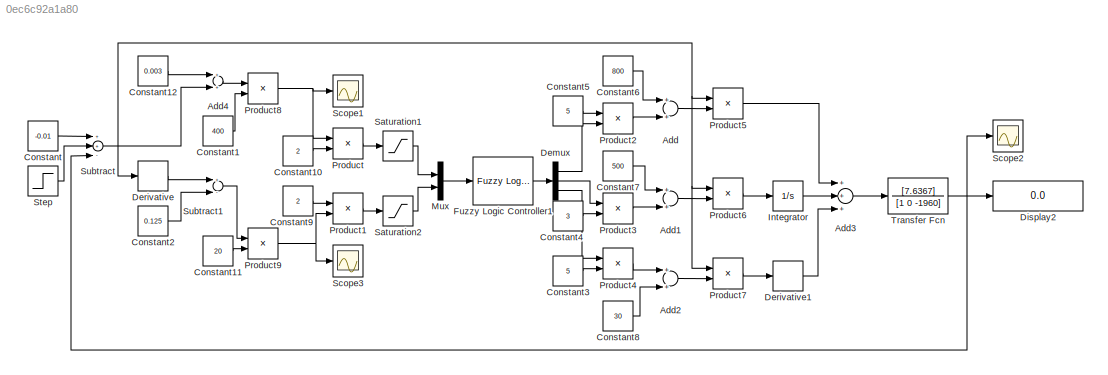
MODEL slx_0ec6c92a1a80
KIND model
BLOCK [Sum] Add
  InputSameDT = off
  OutDataTypeStr = Inherit: Inherit via internal rule
  Ports = [2, 1]
  SaturateOnIntegerOverflow = off
BLOCK [Sum] Add1
  InputSameDT = off
  OutDataTypeStr = Inherit: Inherit via internal rule
  Ports = [2, 1]
  SaturateOnIntegerOverflow = off
BLOCK [Sum] Add2
  InputSameDT = off
  OutDataTypeStr = Inherit: Inherit via internal rule
  Ports = [2, 1]
  SaturateOnIntegerOverflow = off
BLOCK [Sum] Add3
  InputSameDT = off
  Inputs = +++
  OutDataTypeStr = Inherit: Inherit via internal rule
  Ports = [3, 1]
  SaturateOnIntegerOverflow = off
BLOCK [Sum] Add4
  InputSameDT = off
  OutDataTypeStr = Inherit: Inherit via internal rule
  Ports = [2, 1]
  SaturateOnIntegerOverflow = off
BLOCK [Constant] Constant
  Value = -0.01
BLOCK [Constant] Constant1
  Value = 400
BLOCK [Constant] Constant10
  Value = 2
BLOCK [Constant] Constant11
  Value = 20
BLOCK [Constant] Constant12
  Value = 0.003
BLOCK [Constant] Constant2
  Value = 0.125
BLOCK [Constant] Constant3
  Value = 5
BLOCK [Constant] Constant4
  Value = 3
BLOCK [Constant] Constant5
  Value = 5
BLOCK [Constant] Constant6
  Value = 800
BLOCK [Constant] Constant7
  Value = 500
BLOCK [Constant] Constant8
  Value = 30
BLOCK [Constant] Constant9
  Value = 2
BLOCK [Demux] Demux
  DisplayOption = bar
  Outputs = 3
  Ports = [1, 3]
BLOCK [Derivative] Derivative
BLOCK [Derivative] Derivative1
BLOCK [Display] Display2
  Decimation = 1
  Ports = [1]
BLOCK [Reference] Fuzzy Logic Controller1  REF=fuzblock/Fuzzy Logic   (lib defined in mdl_858b3b3e7478)
Controller
  Ports = [1, 1]
  SourceBlock = fuzblock/Fuzzy Logic \nController
  SourceType = FIS
  fis = [test]
BLOCK [Integrator] Integrator
  Ports = [1, 1]
BLOCK [Mux] Mux
  DisplayOption = bar
  Inputs = 2
  Ports = [2, 1]
BLOCK [Product] Product
  InputSameDT = off
  OutDataTypeStr = Inherit: Inherit via internal rule
  Ports = [2, 1]
  RndMeth = Floor
  SaturateOnIntegerOverflow = off
BLOCK [Product] Product1
  InputSameDT = off
  OutDataTypeStr = Inherit: Inherit via internal rule
  Ports = [2, 1]
  RndMeth = Floor
  SaturateOnIntegerOverflow = off
BLOCK [Product] Product2
  InputSameDT = off
  OutDataTypeStr = Inherit: Inherit via internal rule
  Ports = [2, 1]
  RndMeth = Floor
  SaturateOnIntegerOverflow = off
BLOCK [Product] Product3
  InputSameDT = off
  OutDataTypeStr = Inherit: Inherit via internal rule
  Ports = [2, 1]
  RndMeth = Floor
  SaturateOnIntegerOverflow = off
BLOCK [Product] Product4
  InputSameDT = off
  OutDataTypeStr = Inherit: Inherit via internal rule
  Ports = [2, 1]
  RndMeth = Floor
  SaturateOnIntegerOverflow = off
BLOCK [Product] Product5
  InputSameDT = off
  OutDataTypeStr = Inherit: Inherit via internal rule
  Ports = [2, 1]
  RndMeth = Floor
  SaturateOnIntegerOverflow = off
BLOCK [Product] Product6
  InputSameDT = off
  OutDataTypeStr = Inherit: Inherit via internal rule
  Ports = [2, 1]
  RndMeth = Floor
  SaturateOnIntegerOverflow = off
BLOCK [Product] Product7
  InputSameDT = off
  OutDataTypeStr = Inherit: Inherit via internal rule
  Ports = [2, 1]
  RndMeth = Floor
  SaturateOnIntegerOverflow = off
BLOCK [Product] Product8
  InputSameDT = off
  OutDataTypeStr = Inherit: Inherit via internal rule
  Ports = [2, 1]
  RndMeth = Floor
  SaturateOnIntegerOverflow = off
BLOCK [Product] Product9
  InputSameDT = off
  OutDataTypeStr = Inherit: Inherit via internal rule
  Ports = [2, 1]
  RndMeth = Floor
  SaturateOnIntegerOverflow = off
BLOCK [Saturate] Saturation1
  InputPortMap = u0
  Ports = [1, 1]
BLOCK [Saturate] Saturation2
  InputPortMap = u0
  Ports = [1, 1]
BLOCK [Scope] Scope1
  Floating = off
  NumInputPorts = 1
  Ports = [1]
  ShowLegends = off
  YMax = -0.007
  YMin = -0.012
BLOCK [Scope] Scope2
  Floating = off
  NumInputPorts = 1
  Ports = [1]
  SaveName = ScopeData2
  ShowLegends = off
  YMax = -0.007
  YMin = -0.012
BLOCK [Scope] Scope3
  Floating = off
  NumInputPorts = 1
  Ports = [1]
  SaveName = ScopeData1
  ShowLegends = off
  TimeRange = 1.368821292775666
  YMax = -0.007546875000000002
  YMin = -0.007921875000000002
BLOCK [Step] Step
  After = 0.001
  SampleTime = 0
  Time = 10
BLOCK [Sum] Subtract
  InputSameDT = off
  Inputs = ++-
  OutDataTypeStr = Inherit: Inherit via internal rule
  Ports = [3, 1]
  SaturateOnIntegerOverflow = off
BLOCK [Sum] Subtract1
  InputSameDT = off
  Inputs = +-
  OutDataTypeStr = Inherit: Inherit via internal rule
  Ports = [2, 1]
  SaturateOnIntegerOverflow = off
BLOCK [TransferFcn] Transfer Fcn
  Denominator = [1 0 -1960]
  Numerator = [7.6367]
LINE Add1:1 -> Product6:2
LINE Add2:1 -> Product7:2
LINE Add3:1 -> Transfer Fcn:1
LINE Add4:1 -> Product8:1
LINE Add:1 -> Product5:2
LINE Constant10:1 -> Product:2
LINE Constant11:1 -> Product9:2
LINE Constant12:1 -> Add4:1
LINE Constant1:1 -> Product8:2
LINE Constant2:1 -> Subtract1:2
LINE Constant3:1 -> Product4:2
LINE Constant4:1 -> Product3:2
LINE Constant5:1 -> Product2:1
LINE Constant6:1 -> Add:1
LINE Constant7:1 -> Add1:1
LINE Constant8:1 -> Add2:2
LINE Constant9:1 -> Product1:1
LINE Constant:1 -> Subtract:1
LINE Demux:1 -> Product2:2
LINE Demux:2 -> Product3:1
LINE Demux:3 -> Product4:1
LINE Derivative1:1 -> Add3:3
LINE Derivative:1 -> Subtract1:1
LINE Fuzzy Logic Controller1:1 -> Demux:1
LINE Integrator:1 -> Add3:2
LINE Mux:1 -> Fuzzy Logic Controller1:1
LINE Product1:1 -> Saturation2:1
LINE Product2:1 -> Add:2
LINE Product3:1 -> Add1:2
LINE Product4:1 -> Add2:1
LINE Product5:1 -> Add3:1
LINE Product6:1 -> Integrator:1
LINE Product7:1 -> Derivative1:1
NET Product8:1 -> Product:1, Scope1:1
NET Product9:1 -> Product1:2, Scope3:1
LINE Product:1 -> Saturation1:1
LINE Saturation1:1 -> Mux:1
LINE Saturation2:1 -> Mux:2
LINE Step:1 -> Subtract:2
LINE Subtract1:1 -> Product9:1
NET Subtract:1 -> Add4:2, Derivative:1, Product5:1, Product6:1, Product7:1
NET Transfer Fcn:1 -> Display2:1, Scope2:1, Subtract:3
note: NET lines group one-source signal fan-out (src -> all destinations, sorted); 1:1 wires keep LINE
